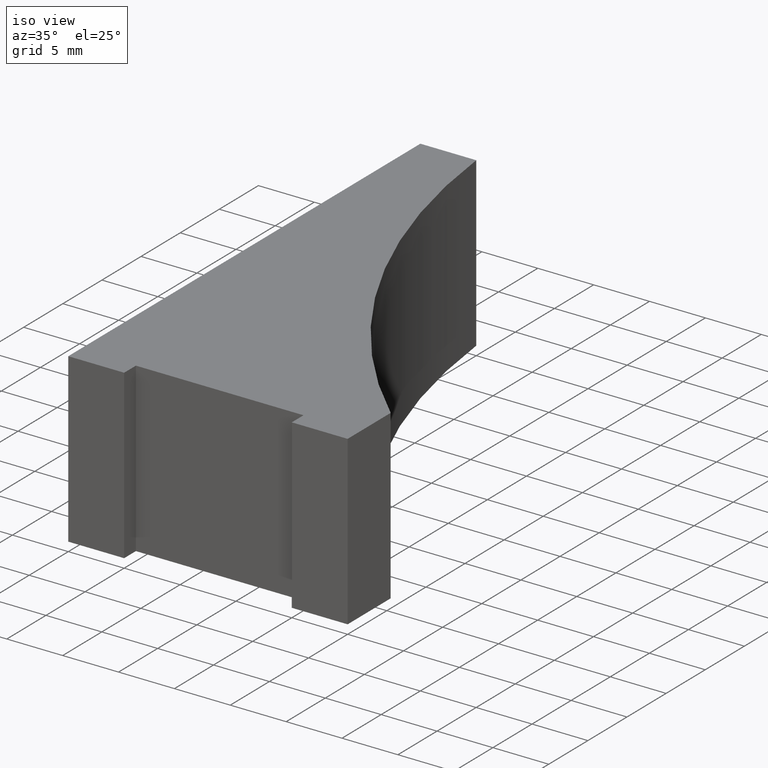
[diagram: clean part render]
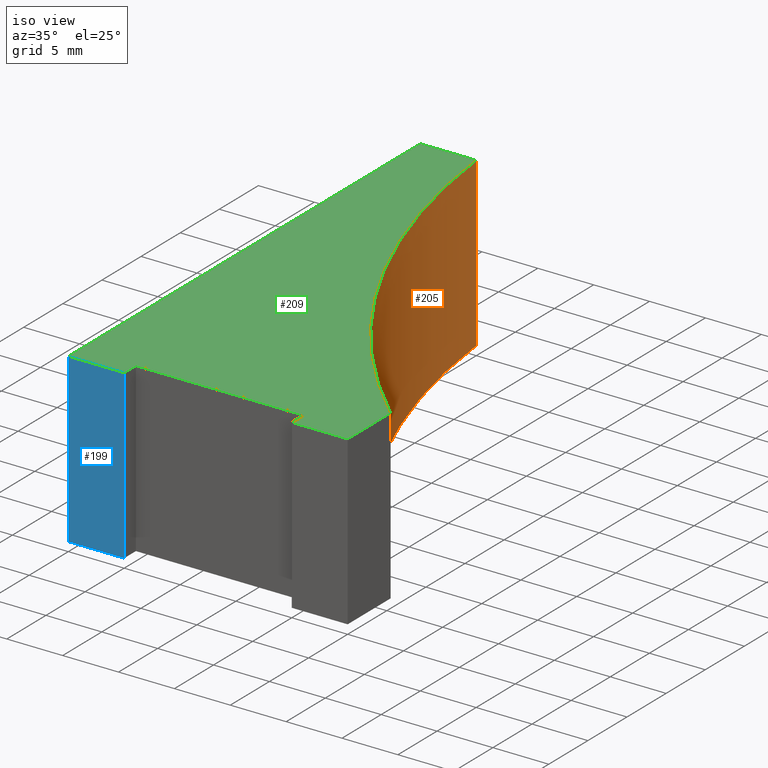
[diagram: same view with three faces highlighted in distinct colors, each labeled with its STEP entity id]
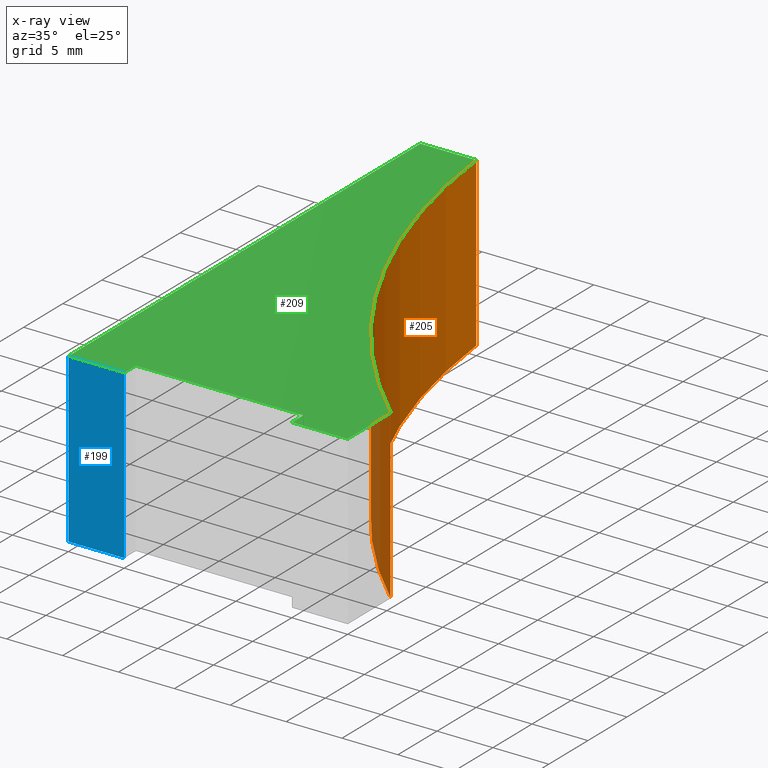
[diagram: x-ray of the same camera — body ghosted, the three highlighted faces saturated]
A machine part, iso view with three faces highlighted in distinct colors.
The next image is the same camera in x-ray (body ghosted, the three faces saturated) — at least one of them is partly hidden behind the body in this view.
Their STEP definitions:

[orange] entity #205 — the highlighted cylindrical surface (partial cylindrical patch) has radius 63 mm, axis along (0, 0, -1).
#15=CIRCLE('',#240,63.);
#16=CIRCLE('',#241,63.);
#17=CYLINDRICAL_SURFACE('',#239,63.);
#24=FACE_OUTER_BOUND('',#35,.T.);
#35=EDGE_LOOP('',(#159,#160,#161,#162));
#58=LINE('',#338,#83);
#59=LINE('',#344,#84);
#83=VECTOR('',#278,10.);
#84=VECTOR('',#285,10.);
#102=VERTEX_POINT('',#334);
#103=VERTEX_POINT('',#336);
#104=VERTEX_POINT('',#340);
#105=VERTEX_POINT('',#342);
#126=EDGE_CURVE('',#102,#103,#58,.T.);
#127=EDGE_CURVE('',#102,#104,#15,.T.);
#128=EDGE_CURVE('',#105,#103,#16,.T.);
#129=EDGE_CURVE('',#104,#105,#59,.T.);
#159=ORIENTED_EDGE('',*,*,#127,.F.);
#160=ORIENTED_EDGE('',*,*,#126,.T.);
#161=ORIENTED_EDGE('',*,*,#128,.F.);
#162=ORIENTED_EDGE('',*,*,#129,.F.);
#205=ADVANCED_FACE('',(#24),#17,.F.);
#239=AXIS2_PLACEMENT_3D('',#339,#279,#280);
#240=AXIS2_PLACEMENT_3D('',#341,#281,#282);
#241=AXIS2_PLACEMENT_3D('',#343,#283,#284);
#278=DIRECTION('',(0.,0.,-1.));
#279=DIRECTION('center_axis',(0.,0.,-1.));
#280=DIRECTION('ref_axis',(0.993994859872907,0.109426772529581,0.));
#281=DIRECTION('center_axis',(0.,0.,-1.));
#282=DIRECTION('ref_axis',(0.993994859872907,0.109426772529581,0.));
#283=DIRECTION('center_axis',(0.,0.,1.));
#284=DIRECTION('ref_axis',(0.993994859872907,0.109426772529581,0.));
#285=DIRECTION('',(0.,0.,-1.));
#334=CARTESIAN_POINT('',(25.,5.5,0.));
#336=CARTESIAN_POINT('',(25.,5.5,-15.));
#338=CARTESIAN_POINT('',(25.,5.5,0.));
#339=CARTESIAN_POINT('Origin',(67.6216761719931,51.8938866693636,0.));
#340=CARTESIAN_POINT('',(5.,45.,0.));
#341=CARTESIAN_POINT('Origin',(67.6216761719931,51.8938866693636,0.));
#342=CARTESIAN_POINT('',(5.,45.,-15.));
#343=CARTESIAN_POINT('Origin',(67.6216761719931,51.8938866693636,-15.));
#344=CARTESIAN_POINT('',(5.,45.,0.));

[blue] entity #199 — the highlighted planar face has unit normal (0, -1, 0).
#18=FACE_OUTER_BOUND('',#29,.T.);
#29=EDGE_LOOP('',(#135,#136,#137,#138));
#40=LINE('',#303,#65);
#41=LINE('',#305,#66);
#42=LINE('',#307,#67);
#43=LINE('',#308,#68);
#65=VECTOR('',#250,10.);
#66=VECTOR('',#251,10.);
#67=VECTOR('',#252,10.);
#68=VECTOR('',#253,10.);
#90=VERTEX_POINT('',#301);
#91=VERTEX_POINT('',#302);
#92=VERTEX_POINT('',#304);
#93=VERTEX_POINT('',#306);
#108=EDGE_CURVE('',#90,#91,#40,.T.);
#109=EDGE_CURVE('',#90,#92,#41,.T.);
#110=EDGE_CURVE('',#93,#92,#42,.T.);
#111=EDGE_CURVE('',#91,#93,#43,.T.);
#135=ORIENTED_EDGE('',*,*,#108,.F.);
#136=ORIENTED_EDGE('',*,*,#109,.T.);
#137=ORIENTED_EDGE('',*,*,#110,.F.);
#138=ORIENTED_EDGE('',*,*,#111,.F.);
#189=PLANE('',#233);
#199=ADVANCED_FACE('',(#18),#189,.T.);
#233=AXIS2_PLACEMENT_3D('',#300,#248,#249);
#248=DIRECTION('center_axis',(0.,-1.,0.));
#249=DIRECTION('ref_axis',(-1.,0.,0.));
#250=DIRECTION('',(1.,0.,0.));
#251=DIRECTION('',(0.,0.,-1.));
#252=DIRECTION('',(-1.,0.,0.));
#253=DIRECTION('',(0.,0.,-1.));
#300=CARTESIAN_POINT('Origin',(5.,0.,0.));
#301=CARTESIAN_POINT('',(0.,0.,0.));
#302=CARTESIAN_POINT('',(5.,0.,0.));
#303=CARTESIAN_POINT('',(0.,0.,0.));
#304=CARTESIAN_POINT('',(0.,0.,-15.));
#305=CARTESIAN_POINT('',(0.,0.,0.));
#306=CARTESIAN_POINT('',(5.,0.,-15.));
#307=CARTESIAN_POINT('',(0.,0.,-15.));
#308=CARTESIAN_POINT('',(5.,0.,0.));

[green] entity #209 — the highlighted planar face has unit normal (0, 0, 1).
#15=CIRCLE('',#240,63.);
#28=FACE_OUTER_BOUND('',#39,.T.);
#39=EDGE_LOOP('',(#180,#181,#182,#183,#184,#185,#186,#187,#188));
#40=LINE('',#303,#65);
#44=LINE('',#311,#69);
#47=LINE('',#317,#72);
#50=LINE('',#323,#75);
#53=LINE('',#329,#78);
#56=LINE('',#335,#81);
#60=LINE('',#347,#85);
#63=LINE('',#352,#88);
#65=VECTOR('',#250,10.);
#69=VECTOR('',#256,10.);
#72=VECTOR('',#261,10.);
#75=VECTOR('',#266,10.);
#78=VECTOR('',#271,10.);
#81=VECTOR('',#276,10.);
#85=VECTOR('',#288,10.);
#88=VECTOR('',#293,10.);
#90=VERTEX_POINT('',#301);
#91=VERTEX_POINT('',#302);
#94=VERTEX_POINT('',#310);
#96=VERTEX_POINT('',#316);
#98=VERTEX_POINT('',#322);
#100=VERTEX_POINT('',#328);
#102=VERTEX_POINT('',#334);
#104=VERTEX_POINT('',#340);
#106=VERTEX_POINT('',#346);
#108=EDGE_CURVE('',#90,#91,#40,.T.);
#112=EDGE_CURVE('',#91,#94,#44,.T.);
#115=EDGE_CURVE('',#94,#96,#47,.T.);
#118=EDGE_CURVE('',#96,#98,#50,.T.);
#121=EDGE_CURVE('',#98,#100,#53,.T.);
#124=EDGE_CURVE('',#100,#102,#56,.T.);
#127=EDGE_CURVE('',#102,#104,#15,.T.);
#130=EDGE_CURVE('',#104,#106,#60,.T.);
#133=EDGE_CURVE('',#106,#90,#63,.T.);
#180=ORIENTED_EDGE('',*,*,#133,.T.);
#181=ORIENTED_EDGE('',*,*,#108,.T.);
#182=ORIENTED_EDGE('',*,*,#112,.T.);
#183=ORIENTED_EDGE('',*,*,#115,.T.);
#184=ORIENTED_EDGE('',*,*,#118,.T.);
#185=ORIENTED_EDGE('',*,*,#121,.T.);
#186=ORIENTED_EDGE('',*,*,#124,.T.);
#187=ORIENTED_EDGE('',*,*,#127,.T.);
#188=ORIENTED_EDGE('',*,*,#130,.T.);
#198=PLANE('',#245);
#209=ADVANCED_FACE('',(#28),#198,.T.);
#240=AXIS2_PLACEMENT_3D('',#341,#281,#282);
#245=AXIS2_PLACEMENT_3D('',#355,#297,#298);
#250=DIRECTION('',(1.,0.,0.));
#256=DIRECTION('',(0.,1.,0.));
#261=DIRECTION('',(1.,-7.40148683083438E-17,0.));
#266=DIRECTION('',(0.,-1.,0.));
#271=DIRECTION('',(1.,0.,0.));
#276=DIRECTION('',(0.,1.,0.));
#281=DIRECTION('center_axis',(0.,0.,-1.));
#282=DIRECTION('ref_axis',(0.993994859872907,0.109426772529581,0.));
#288=DIRECTION('',(-1.,0.,0.));
#293=DIRECTION('',(0.,-1.,0.));
#297=DIRECTION('center_axis',(0.,0.,1.));
#298=DIRECTION('ref_axis',(1.,0.,0.));
#301=CARTESIAN_POINT('',(0.,0.,0.));
#302=CARTESIAN_POINT('',(5.,0.,0.));
#303=CARTESIAN_POINT('',(0.,0.,0.));
#310=CARTESIAN_POINT('',(5.,1.5,0.));
#311=CARTESIAN_POINT('',(5.,0.,0.));
#316=CARTESIAN_POINT('',(20.,1.5,0.));
#317=CARTESIAN_POINT('',(5.,1.5,0.));
#322=CARTESIAN_POINT('',(20.,0.,0.));
#323=CARTESIAN_POINT('',(20.,1.5,0.));
#328=CARTESIAN_POINT('',(25.,0.,0.));
#329=CARTESIAN_POINT('',(20.,0.,0.));
#334=CARTESIAN_POINT('',(25.,5.5,0.));
#335=CARTESIAN_POINT('',(25.,0.,0.));
#340=CARTESIAN_POINT('',(5.,45.,0.));
#341=CARTESIAN_POINT('Origin',(67.6216761719931,51.8938866693636,0.));
#346=CARTESIAN_POINT('',(0.,45.,0.));
#347=CARTESIAN_POINT('',(5.,45.,0.));
#352=CARTESIAN_POINT('',(0.,45.,0.));
#355=CARTESIAN_POINT('Origin',(7.9030145511575,17.8246399475874,0.));